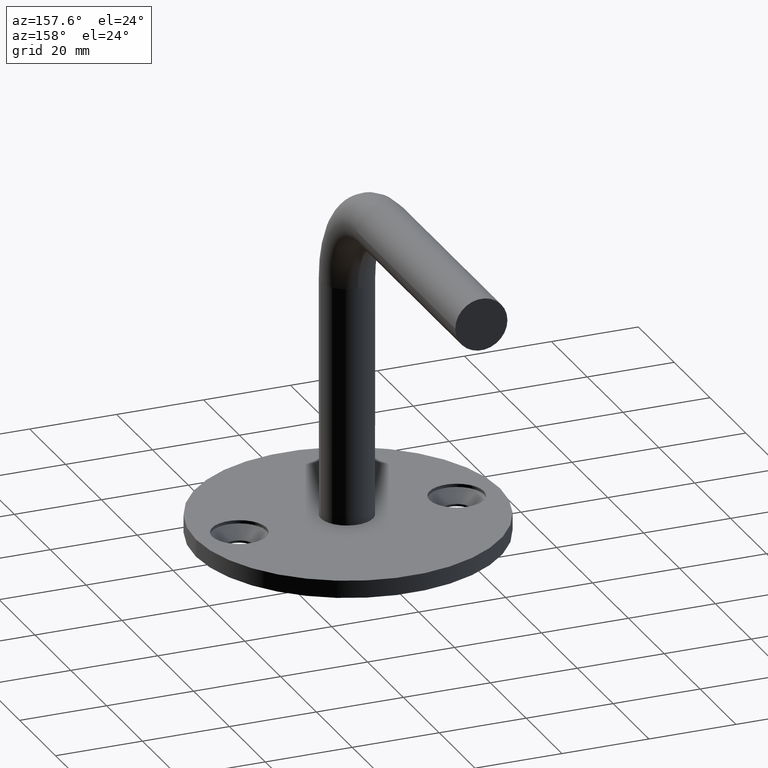
[diagram: clean part render]
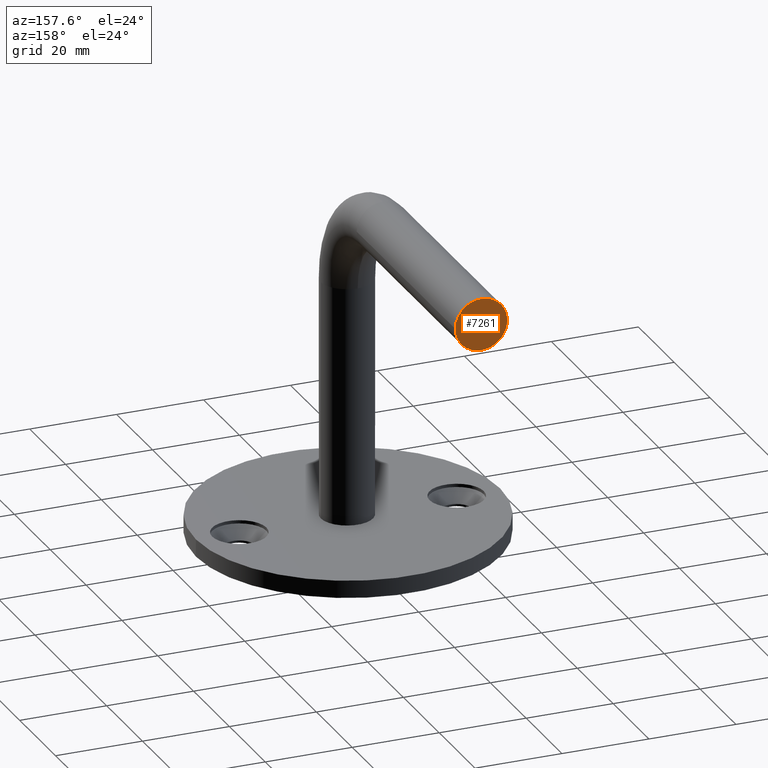
[diagram: same view with one face highlighted and labeled with its STEP entity id]
A machine part, auxiliary view. The second image highlights one B-rep face of the part: STEP entity #7261.
In plain terms, the highlighted planar face has unit normal (-0, -1, -0).
Its self-contained STEP definition (entity closure, byte-faithful):
#701 = DIRECTION ( 'NONE',  ( 0.0000000000000000000, -1.000000000000000000, -6.123233995736766000E-017 ) ) ;
#1710 = AXIS2_PLACEMENT_3D ( 'NONE', #13282, #3008, #14295 ) ;
#2088 = AXIS2_PLACEMENT_3D ( 'NONE', #8478, #2862, #3184 ) ;
#2862 = DIRECTION ( 'NONE',  ( -0.0000000000000000000, -1.000000000000000000, -6.123233995736766000E-017 ) ) ;
#3008 = DIRECTION ( 'NONE',  ( 0.0000000000000000000, -1.000000000000000000, -6.123233995736766000E-017 ) ) ;
#3184 = DIRECTION ( 'NONE',  ( -1.000000000000000000, 0.0000000000000000000, 0.0000000000000000000 ) ) ;
#3416 = CIRCLE ( 'NONE', #11758, 6.000000000000000900 ) ;
#4141 = EDGE_CURVE ( 'NONE', #4909, #13952, #8912, .T. ) ;
#4485 = FACE_OUTER_BOUND ( 'NONE', #9713, .T. ) ;
#4909 = VERTEX_POINT ( 'NONE', #10947 ) ;
#7261 = ADVANCED_FACE ( 'NONE', ( #4485 ), #14156, .F. ) ;
#8255 = EDGE_CURVE ( 'NONE', #13952, #4909, #3416, .T. ) ;
#8478 = CARTESIAN_POINT ( 'NONE',  ( -5.562958085126851500E-015, 74.99999999999998600, 78.99999999999998600 ) ) ;
#8912 = CIRCLE ( 'NONE', #1710, 6.000000000000000900 ) ;
#9713 = EDGE_LOOP ( 'NONE', ( #13390, #14124 ) ) ;
#9828 = DIRECTION ( 'NONE',  ( -1.000000000000000000, 0.0000000000000000000, 0.0000000000000000000 ) ) ;
#10947 = CARTESIAN_POINT ( 'NONE',  ( 5.999999999999995600, 74.99999999999998600, 78.99999999999998600 ) ) ;
#11758 = AXIS2_PLACEMENT_3D ( 'NONE', #13155, #701, #9828 ) ;
#12937 = CARTESIAN_POINT ( 'NONE',  ( -6.000000000000006200, 74.99999999999998600, 78.99999999999998600 ) ) ;
#13155 = CARTESIAN_POINT ( 'NONE',  ( -5.562958085126851500E-015, 74.99999999999998600, 78.99999999999998600 ) ) ;
#13282 = CARTESIAN_POINT ( 'NONE',  ( -5.562958085126851500E-015, 74.99999999999998600, 78.99999999999998600 ) ) ;
#13390 = ORIENTED_EDGE ( 'NONE', *, *, #8255, .F. ) ;
#13952 = VERTEX_POINT ( 'NONE', #12937 ) ;
#14124 = ORIENTED_EDGE ( 'NONE', *, *, #4141, .F. ) ;
#14156 = PLANE ( 'NONE',  #2088 ) ;
#14295 = DIRECTION ( 'NONE',  ( -1.000000000000000000, 0.0000000000000000000, 0.0000000000000000000 ) ) ;